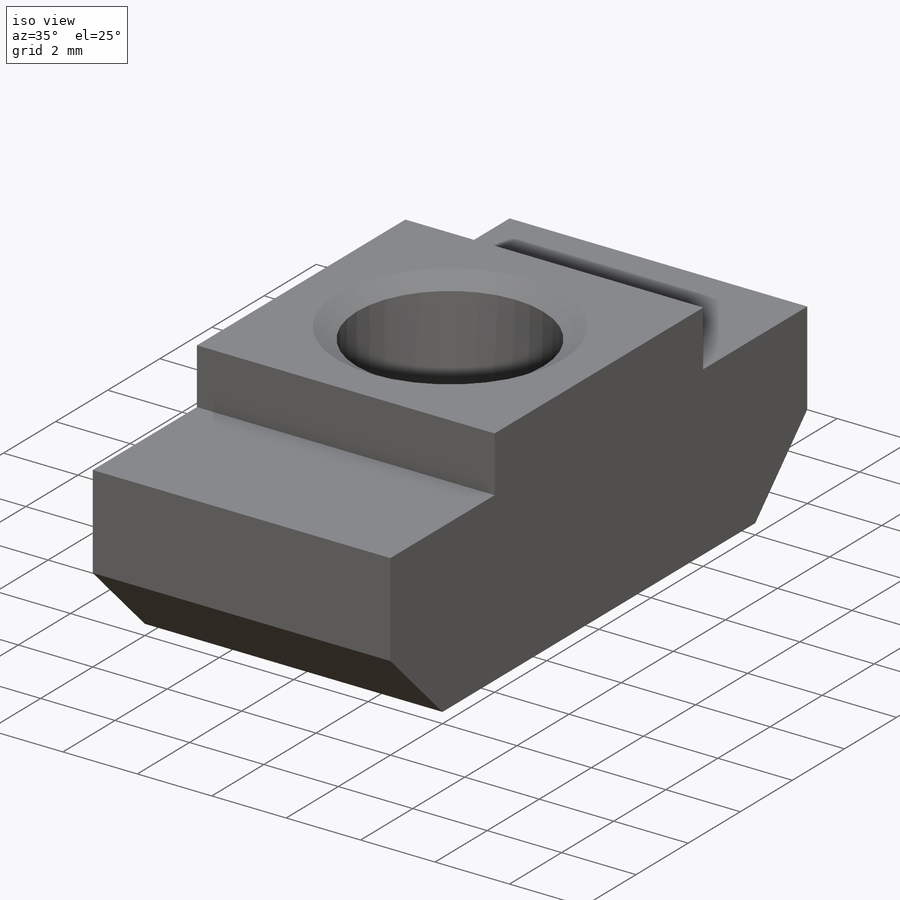
[diagram: iso view]
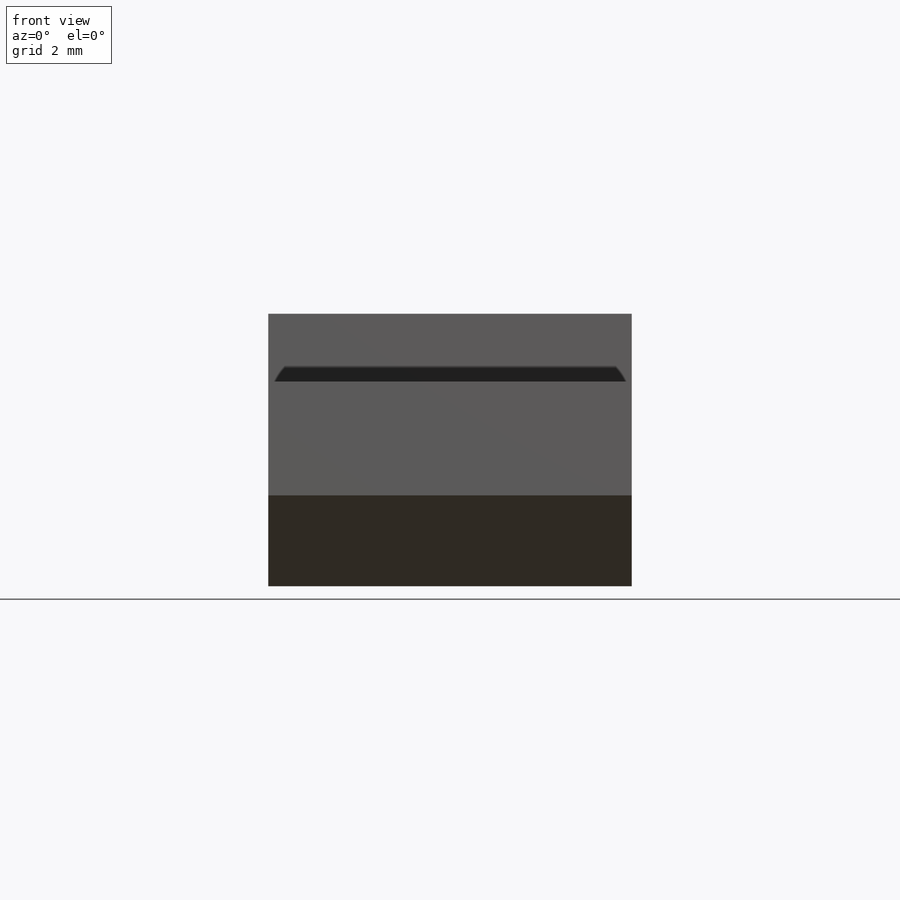
[diagram: front view]
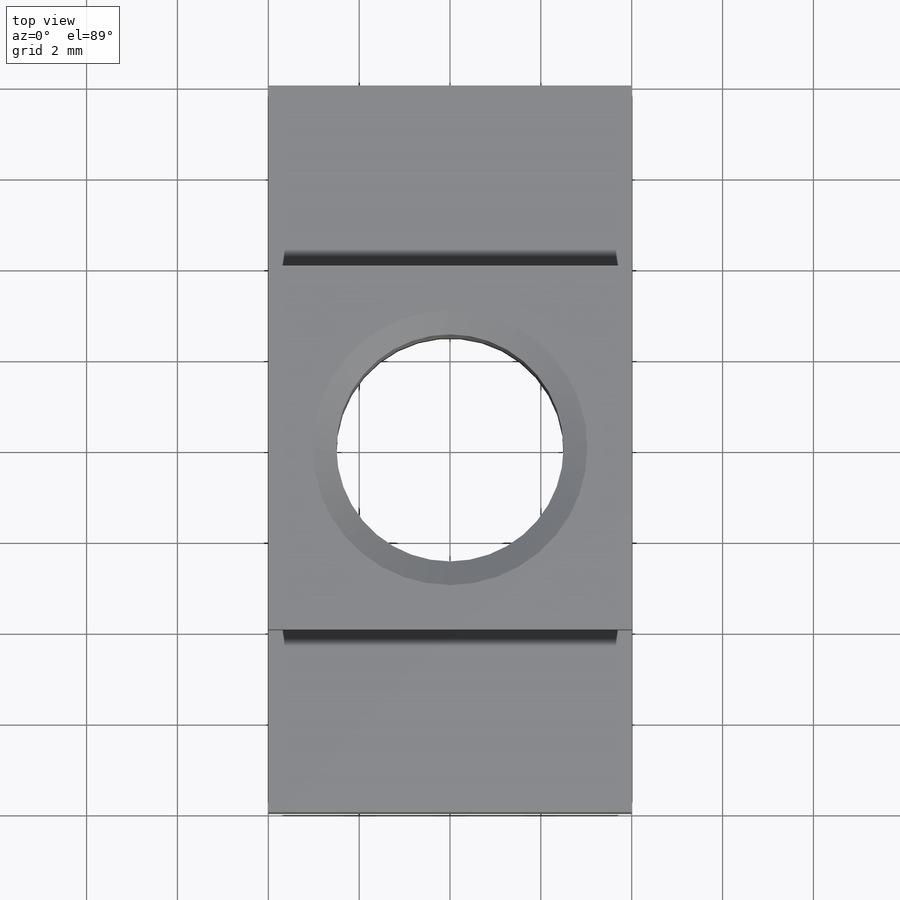
[diagram: top view]
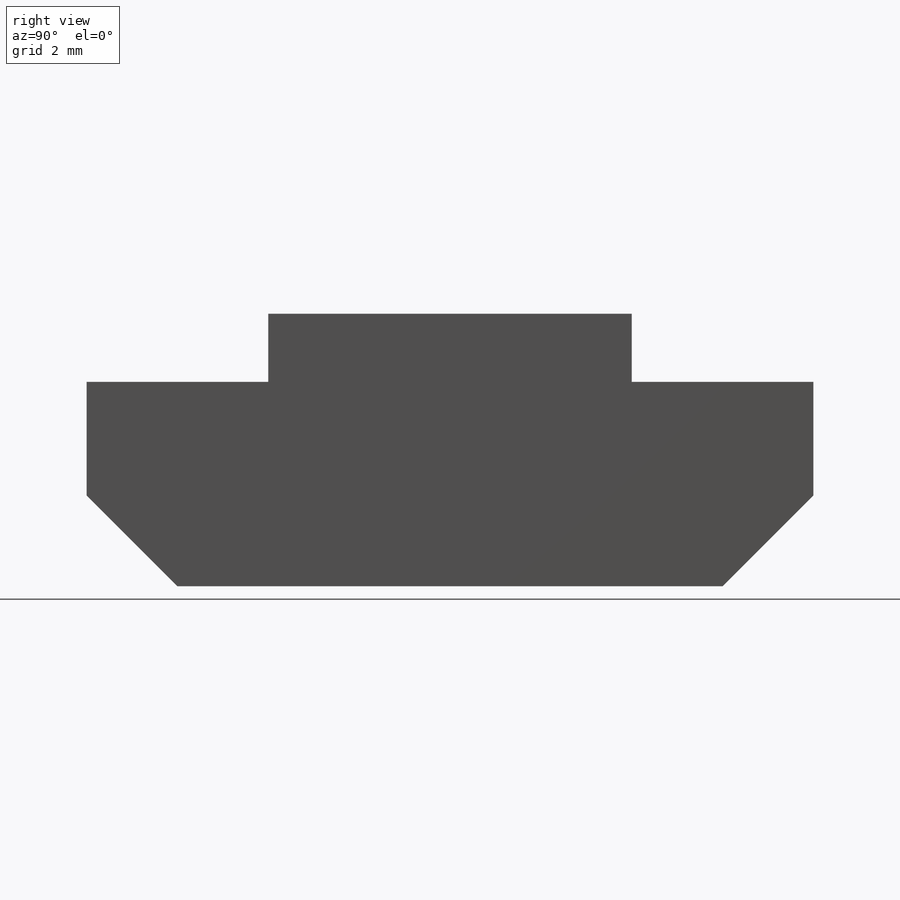
[diagram: right view]
SOLIDWORKS PART (.sldprt)
format: sldprt  version: not decoded by parser v0  size: 208,896 bytes
history: native  units: mm
features: sketch x4, plane x3, material x1, extrude x1, hole x1, thread x1, cut_extrude x1 (+9 scaffold rows collapsed)
feature tree (21):
  scaffold x9  (default folders/planes/origin — collapsed)
  material  "Acciaio al carbonio semplice"
  plane  "Piano frontale"
  plane  "Piano superiore"
  plane  "Piano destro"
  sketch  "Schizzo1"  dims[c1.D1=15.0mm c1.D2=6.0mm c1.D3=8.0mm c1.D4=1.0mm c1.D5=9.0mm c1.D6=3.0mm c2.D1=~1.420098mm c3.D1=135.0deg c3.D4=5.0mm c4.D1=8.0mm c4.D2=~0.611001mm c5.D2=135.0deg c5.D3=6.0mm]
  extrude  "Estrusione-Estrusione1"  Depth=16mm
  hole  "Foro filettato M6-1"  [1 undecoded]
  sketch  "Schizzo3"
  thread  "Filettatura del foro1"  Diameter=6mm  [1 undecoded]
  sketch  "Schizzo2"  dims[hole-wizard template sketch: 54 standard entries collapsed; hole parameters kept: c17.Thru Tap Drill Dia.=5.0mm c17.Thru Tap Drill Depth=6.0mm c17.Near C'Sink Dia.=6.05mm c17.D4=~3.666174mm c17.Near C'Sink Angle=120.0deg]
  sketch  "Schizzo4"  dims[D1=1.5mm D2=2.0mm D3=8.0mm]
  cut_extrude  "Taglio-Estrusione1"  Depth=10mm
decode coverage: 6 of 8 modeling features carry decoded parameters
note: ~ marks probable driven/reference dimensions
note: 2 parameter values undecoded
note: suppression state not decoded; provenance and decode notes live in map.json
